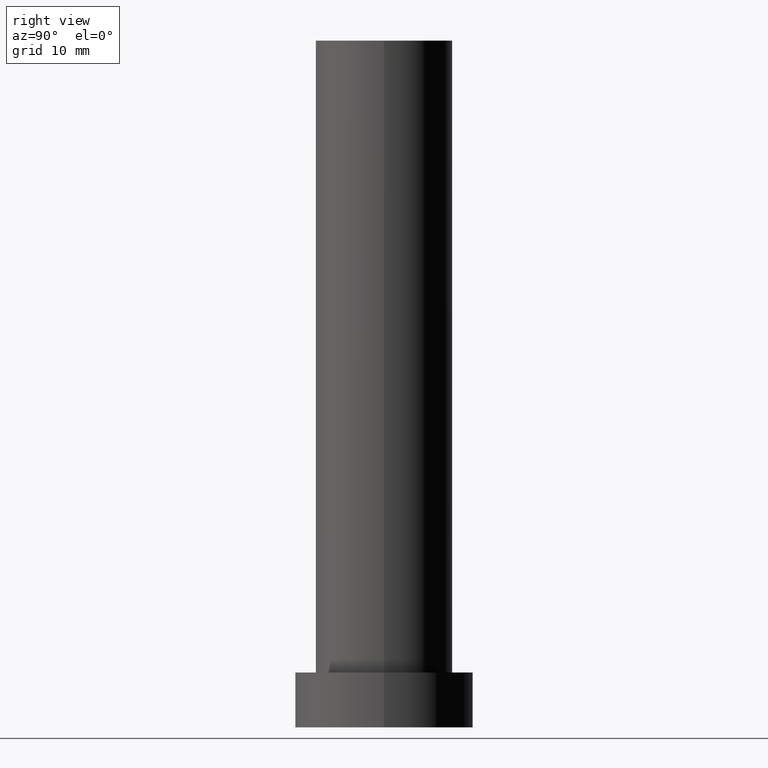
[diagram: clean part render]
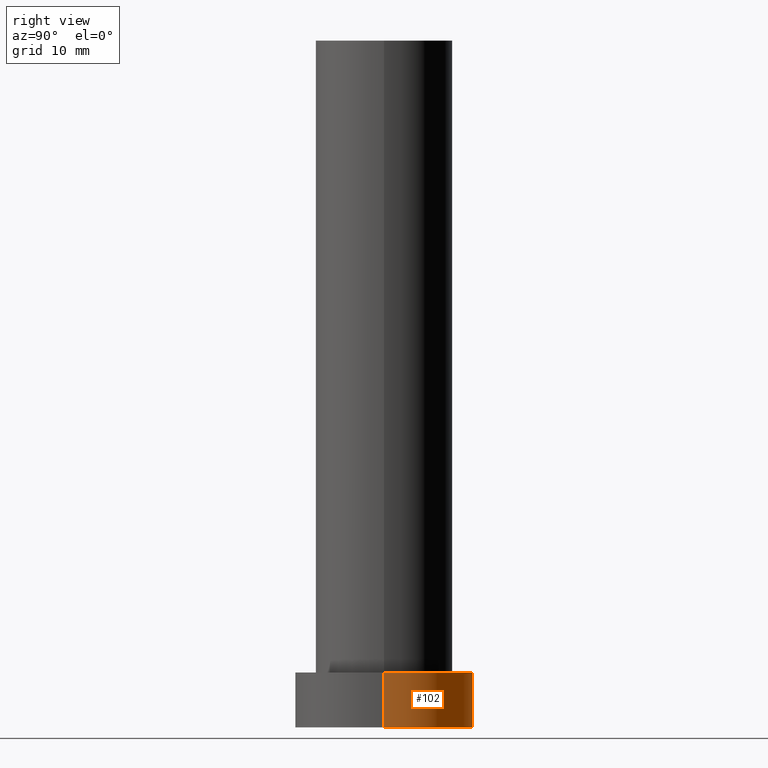
[diagram: same view with one face highlighted and labeled with its STEP entity id]
A machine part, right view. The second image highlights one B-rep face of the part: STEP entity #102.
In plain terms, the highlighted cylindrical surface (partial cylindrical patch) has radius 13 mm, axis along (-0, -0, -1).
Its self-contained STEP definition (entity closure, byte-faithful):
#2 = CIRCLE ( 'NONE', #94, 13.00000000000000178 ) ;
#7 = VERTEX_POINT ( 'NONE', #80 ) ;
#9 = EDGE_CURVE ( 'NONE', #61, #59, #233, .T. ) ;
#10 = LINE ( 'NONE', #98, #84 ) ;
#22 = ORIENTED_EDGE ( 'NONE', *, *, #114, .F. ) ;
#23 = CIRCLE ( 'NONE', #171, 13.00000000000000178 ) ;
#25 = DIRECTION ( 'NONE',  ( 1.000000000000000000, 0.000000000000000000, 0.000000000000000000 ) ) ;
#28 = CYLINDRICAL_SURFACE ( 'NONE', #243, 13.00000000000000178 ) ;
#37 = EDGE_CURVE ( 'NONE', #59, #7, #2, .T. ) ;
#40 = VECTOR ( 'NONE', #140, 1000.000000000000000 ) ;
#52 = CARTESIAN_POINT ( 'NONE',  ( 0.000000000000000000, 0.000000000000000000, 8.000000000000000000 ) ) ;
#59 = VERTEX_POINT ( 'NONE', #170 ) ;
#61 = VERTEX_POINT ( 'NONE', #109 ) ;
#68 = DIRECTION ( 'NONE',  ( -1.000000000000000000, 0.000000000000000000, 0.000000000000000000 ) ) ;
#75 = ORIENTED_EDGE ( 'NONE', *, *, #239, .F. ) ;
#80 = CARTESIAN_POINT ( 'NONE',  ( -13.00000000000000178, 0.000000000000000000, 0.000000000000000000 ) ) ;
#83 = CARTESIAN_POINT ( 'NONE',  ( 13.00000000000000178, 1.592040838891559293E-15, 8.000000000000000000 ) ) ;
#84 = VECTOR ( 'NONE', #90, 1000.000000000000000 ) ;
#88 = VERTEX_POINT ( 'NONE', #236 ) ;
#90 = DIRECTION ( 'NONE',  ( -0.000000000000000000, -0.000000000000000000, -1.000000000000000000 ) ) ;
#91 = DIRECTION ( 'NONE',  ( 0.000000000000000000, 0.000000000000000000, 1.000000000000000000 ) ) ;
#94 = AXIS2_PLACEMENT_3D ( 'NONE', #181, #91, #240 ) ;
#98 = CARTESIAN_POINT ( 'NONE',  ( -13.00000000000000178, 0.000000000000000000, 8.000000000000000000 ) ) ;
#102 = ADVANCED_FACE ( 'NONE', ( #136 ), #28, .T. ) ;
#109 = CARTESIAN_POINT ( 'NONE',  ( 13.00000000000000178, 1.592040838891559293E-15, 8.000000000000000000 ) ) ;
#114 = EDGE_CURVE ( 'NONE', #88, #7, #10, .T. ) ;
#136 = FACE_OUTER_BOUND ( 'NONE', #204, .T. ) ;
#140 = DIRECTION ( 'NONE',  ( -0.000000000000000000, -0.000000000000000000, -1.000000000000000000 ) ) ;
#170 = CARTESIAN_POINT ( 'NONE',  ( 13.00000000000000178, 1.592040838891559293E-15, 0.000000000000000000 ) ) ;
#171 = AXIS2_PLACEMENT_3D ( 'NONE', #207, #205, #25 ) ;
#181 = CARTESIAN_POINT ( 'NONE',  ( 0.000000000000000000, 0.000000000000000000, 0.000000000000000000 ) ) ;
#182 = ORIENTED_EDGE ( 'NONE', *, *, #37, .T. ) ;
#185 = ORIENTED_EDGE ( 'NONE', *, *, #9, .T. ) ;
#193 = DIRECTION ( 'NONE',  ( -0.000000000000000000, -0.000000000000000000, -1.000000000000000000 ) ) ;
#204 = EDGE_LOOP ( 'NONE', ( #75, #185, #182, #22 ) ) ;
#205 = DIRECTION ( 'NONE',  ( 0.000000000000000000, 0.000000000000000000, 1.000000000000000000 ) ) ;
#207 = CARTESIAN_POINT ( 'NONE',  ( 0.000000000000000000, 0.000000000000000000, 8.000000000000000000 ) ) ;
#233 = LINE ( 'NONE', #83, #40 ) ;
#236 = CARTESIAN_POINT ( 'NONE',  ( -13.00000000000000178, 0.000000000000000000, 8.000000000000000000 ) ) ;
#239 = EDGE_CURVE ( 'NONE', #61, #88, #23, .T. ) ;
#240 = DIRECTION ( 'NONE',  ( 1.000000000000000000, 0.000000000000000000, 0.000000000000000000 ) ) ;
#243 = AXIS2_PLACEMENT_3D ( 'NONE', #52, #193, #68 ) ;